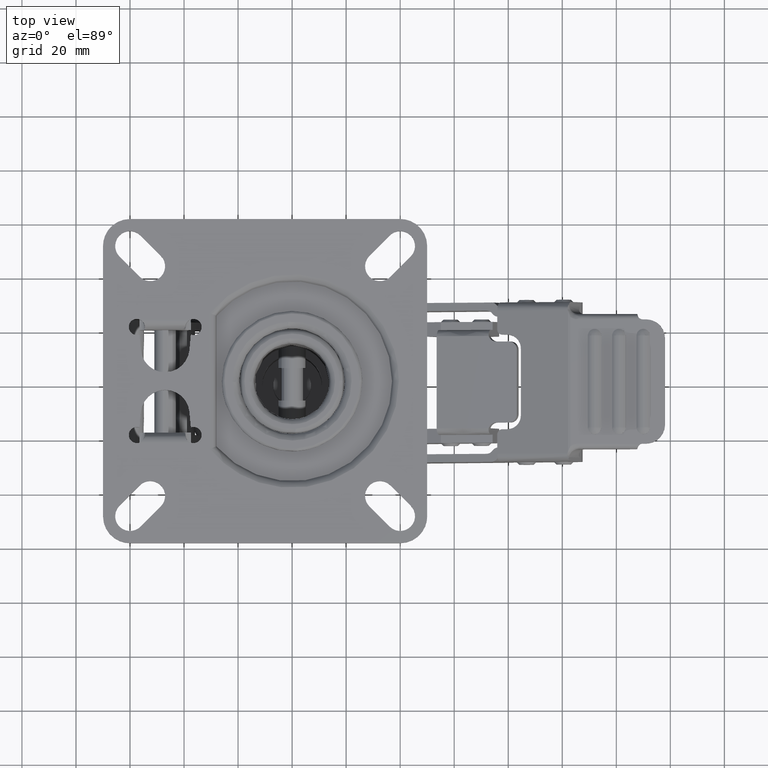
[diagram: clean part render]
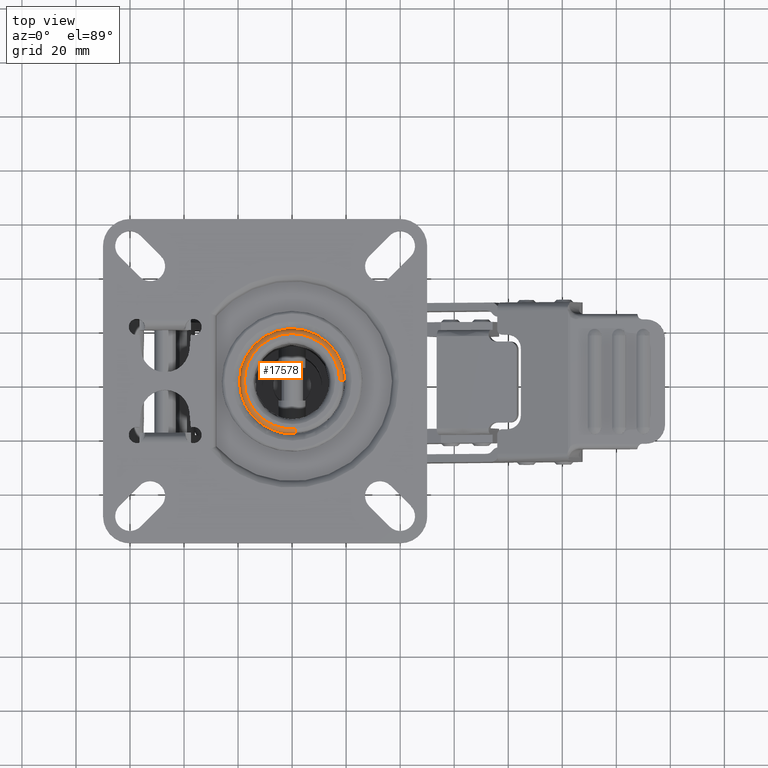
[diagram: same view with one face highlighted and labeled with its STEP entity id]
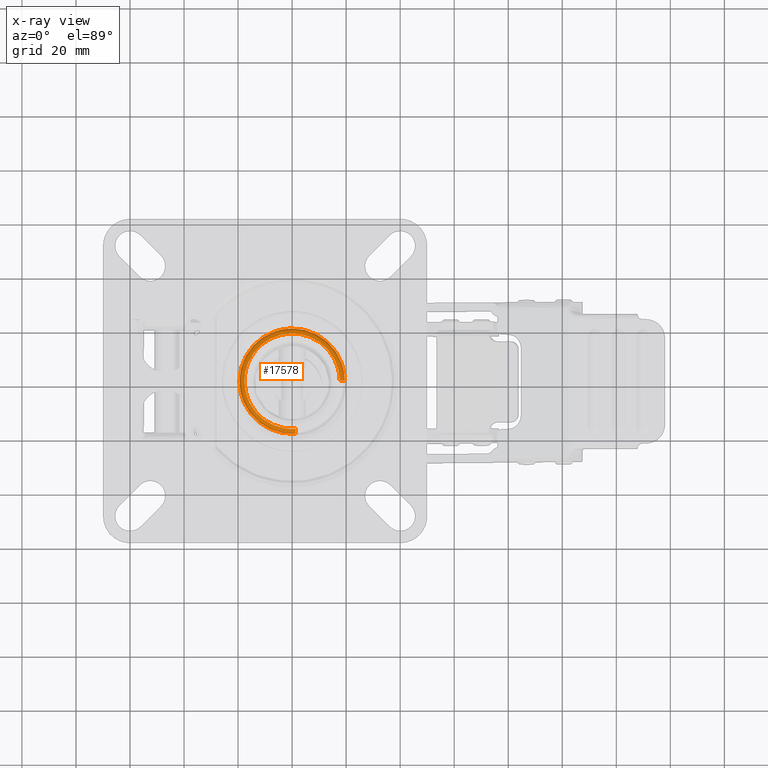
[diagram: x-ray of the same camera — body ghosted, the highlighted face saturated]
A machine part, top view. The second image highlights one B-rep face of the part: STEP entity #17578.
The next image is the same camera in x-ray: the body ghosted, the highlighted face saturated — about 0% of this face is hidden behind the body in this view.
In plain terms, the highlighted face is a freeform B-spline surface patch.
Its self-contained STEP definition (entity closure, byte-faithful):
#17415=CARTESIAN_POINT('',(1.221820157136849,-17.478703313306326,-4.004478202219710));
#17416=CARTESIAN_POINT('',(0.721587660383555,-17.513671247530755,-4.004478202219708));
#17417=CARTESIAN_POINT('',(0.220174057564924,-17.519972528384478,-4.004478202219707));
#17418=CARTESIAN_POINT('',(-17.299798470819525,-17.740146585949393,-4.004478202219708));
#17419=CARTESIAN_POINT('',(-17.519972528384447,-0.220174057564948,-4.004478202219707));
#17420=CARTESIAN_POINT('',(-17.740146585949379,17.299798470819510,-4.004478202219708));
#17421=CARTESIAN_POINT('',(-0.220174057564926,17.519972528384425,-4.004478202219707));
#17422=CARTESIAN_POINT('',(17.299798470819525,17.740146585949361,-4.004478202219708));
#17423=CARTESIAN_POINT('',(17.519972528384447,0.220174057564903,-4.004478202219707));
#17424=CARTESIAN_POINT('',(1.369800122671880,-19.595625266829465,-3.856555816048767));
#17425=CARTESIAN_POINT('',(0.808982287563619,-19.634828320004210,-3.856555816048767));
#17426=CARTESIAN_POINT('',(0.246840297485629,-19.641892776451435,-3.856555816048768));
#17427=CARTESIAN_POINT('',(-19.395052478965763,-19.888733073937043,-3.856555816048766));
#17428=CARTESIAN_POINT('',(-19.641892776451403,-0.246840297485654,-3.856555816048768));
#17429=CARTESIAN_POINT('',(-19.888733073937022,19.395052478965738,-3.856555816048766));
#17430=CARTESIAN_POINT('',(-0.246840297485631,19.641892776451385,-3.856555816048768));
#17431=CARTESIAN_POINT('',(19.395052478965763,19.888733073936997,-3.856555816048766));
#17432=CARTESIAN_POINT('',(19.641892776451403,0.246840297485609,-3.856555816048768));
#17433=CARTESIAN_POINT('',(1.359485054789001,-19.448063442670392,-5.978643648176345));
#17434=CARTESIAN_POINT('',(0.802890371616066,-19.486971283318862,-5.978643648176346));
#17435=CARTESIAN_POINT('',(0.244981504817522,-19.493982541969828,-5.978643648176345));
#17436=CARTESIAN_POINT('',(-19.249001037152276,-19.738964046787345,-5.978643648176346));
#17437=CARTESIAN_POINT('',(-19.493982541969803,-0.244981504817547,-5.978643648176345));
#17438=CARTESIAN_POINT('',(-19.738964046787316,19.249001037152247,-5.978643648176346));
#17439=CARTESIAN_POINT('',(-0.244981504817525,19.493982541969782,-5.978643648176345));
#17440=CARTESIAN_POINT('',(19.249001037152276,19.738964046787299,-5.978643648176346));
#17441=CARTESIAN_POINT('',(19.493982541969803,0.244981504817502,-5.978643648176345));
#17449=(BOUNDED_SURFACE()B_SPLINE_SURFACE(2,2,((#17415,#17424,#17433),(#17416,#17425,#17434),(#17417,#17426,#17435),(#17418,#17427,#17436),(#17419,#17428,#17437),(#17420,#17429,#17438),(#17421,#17430,#17439),(#17422,#17431,#17440),(#17423,#17432,#17441)),.UNSPECIFIED.,.F.,.F.,.U.)B_SPLINE_SURFACE_WITH_KNOTS((3,2,2,2,3),(3,3),(0.0,1.292048295172410,33.593286479343909,65.894524663515412,98.195762847686922),(0.0,3.371392224879566),.UNSPECIFIED.)GEOMETRIC_REPRESENTATION_ITEM()RATIONAL_B_SPLINE_SURFACE(((0.895729827264092,0.587800177767222,0.895729736419678),(0.905606585907197,0.594281552294978,0.905606494061087),(0.916342192237678,0.601326524023529,0.916342099302769),(0.647951778018609,0.425202062844373,0.647951712303704),(0.916342192237678,0.601326524023529,0.916342099302769),(0.647951778018609,0.425202062844373,0.647951712303704),(0.916342192237678,0.601326524023529,0.916342099302769),(0.647951778018609,0.425202062844373,0.647951712303704),(0.916342192237678,0.601326524023529,0.916342099302769)))REPRESENTATION_ITEM('')SURFACE());
#17450=CARTESIAN_POINT('',(1.359798405728119,-19.452530639887961,-5.849999999059281));
#17451=VERTEX_POINT('',#17450);
#17452=CARTESIAN_POINT('',(-19.500000000000000,-2.340590E-014,-5.850000000000001));
#17453=VERTEX_POINT('',#17452);
#17454=CARTESIAN_POINT('',(1.359798405728119,-19.452530639887961,-5.849999999059281));
#17455=CARTESIAN_POINT('',(0.030070756109644,-19.545660644360140,-5.849999999164059));
#17456=CARTESIAN_POINT('',(-2.313643680117045,-19.468594464149788,-5.849999999340648));
#17457=CARTESIAN_POINT('',(-5.744372450444065,-18.729497785445471,-5.849999999578047));
#17458=CARTESIAN_POINT('',(-8.853101994999333,-17.492237492572070,-5.849999999774128));
#17459=CARTESIAN_POINT('',(-11.690966989883110,-15.719834574698490,-5.849999999931455));
#17460=CARTESIAN_POINT('',(-14.130409487959209,-13.559166913625130,-5.850000000045360));
#17461=CARTESIAN_POINT('',(-16.300953826205941,-10.906369483366580,-5.850000000122076));
#17462=CARTESIAN_POINT('',(-18.027110910055761,-7.745757822593222,-5.850000000147815));
#17463=CARTESIAN_POINT('',(-19.217346947448089,-3.998836768048067,-5.850000000112882));
#17464=CARTESIAN_POINT('',(-19.500251698728039,-1.416298139897424,-5.850000000047586));
#17465=CARTESIAN_POINT('',(-19.500000000000000,-2.340590E-014,-5.850000000000001));
#17466=B_SPLINE_CURVE_WITH_KNOTS('',3,(#17454,#17455,#17456,#17457,#17458,#17459,#17460,#17461,#17462,#17463,#17464,#17465),.UNSPECIFIED.,.F.,.U.,(4,1,1,1,1,1,1,1,1,4),(0.000000061989418,3.998951616519197,6.998167771407491,10.497278226644360,13.996408655396641,16.995520130249609,20.244700946267621,24.243673078106561,27.742774400032381,31.991650216113840),.UNSPECIFIED.);
#17467=EDGE_CURVE('',#17451,#17453,#17466,.T.);
#17468=ORIENTED_EDGE('',*,*,#17467,.F.);
#17469=CARTESIAN_POINT('',(1.230791894841725,-17.607034179146790,-4.000000000000002));
#17470=VERTEX_POINT('',#17469);
#17471=CARTESIAN_POINT('',(1.230791894841725,-17.607034179146790,-4.000000000000002));
#17472=CARTESIAN_POINT('',(1.252969564554681,-17.924295770703420,-3.999193525393565));
#17473=CARTESIAN_POINT('',(1.288792126526880,-18.436753714746619,-4.136040821585681));
#17474=CARTESIAN_POINT('',(1.327179800364579,-18.985906743671780,-4.576790946968078));
#17475=CARTESIAN_POINT('',(1.352670210853371,-19.350558589655389,-5.123810795910117));
#17476=CARTESIAN_POINT('',(1.359828217642807,-19.452957112820130,-5.577483242606090));
#17477=CARTESIAN_POINT('',(1.359798405728119,-19.452530639887961,-5.849999999059281));
#17478=B_SPLINE_CURVE_WITH_KNOTS('',3,(#17471,#17472,#17473,#17474,#17475,#17476,#17477),.UNSPECIFIED.,.F.,.U.,(4,1,1,1,4),(0.000000518040428,0.953564804814748,1.543800548152913,2.088715226250358,2.906046114575070),.UNSPECIFIED.);
#17479=EDGE_CURVE('',#17470,#17451,#17478,.T.);
#17480=ORIENTED_EDGE('',*,*,#17479,.F.);
#17481=CARTESIAN_POINT('',(-17.649999999999999,-2.340590E-014,-4.0));
#17482=VERTEX_POINT('',#17481);
#17483=CARTESIAN_POINT('',(-17.649999999999999,-2.340590E-014,-4.0));
#17484=CARTESIAN_POINT('',(-17.650234575231359,-1.281932283743445,-4.000000000000004));
#17485=CARTESIAN_POINT('',(-17.369445043305891,-3.845683636368075,-3.999999999999991));
#17486=CARTESIAN_POINT('',(-16.176335901698739,-7.365925067340593,-4.000000000000021));
#17487=CARTESIAN_POINT('',(-14.485538541325299,-10.238617355356780,-3.999999999999962));
#17488=CARTESIAN_POINT('',(-12.770219994972280,-12.254671104390059,-4.000000000000052));
#17489=CARTESIAN_POINT('',(-10.982179451335520,-13.879732605536169,-3.999999999999975));
#17490=CARTESIAN_POINT('',(-8.811866501077711,-15.395171896309220,-4.000000000000015));
#17491=CARTESIAN_POINT('',(-5.791119795355010,-16.804530580477660,-3.999999999999995));
#17492=CARTESIAN_POINT('',(-2.320910145792302,-17.622098458223689,-4.0));
#17493=CARTESIAN_POINT('',(0.102459754018269,-17.686022728433130,-4.000000000000020));
#17494=CARTESIAN_POINT('',(1.230791894841725,-17.607034179146790,-4.000000000000002));
#17495=B_SPLINE_CURVE_WITH_KNOTS('',3,(#17483,#17484,#17485,#17486,#17487,#17488,#17489,#17490,#17491,#17492,#17493,#17494),.UNSPECIFIED.,.F.,.U.,(4,1,1,1,1,1,1,1,1,4),(0.000000112688454,3.845767047260619,7.691586705301610,11.084977733655940,13.799666370923941,15.609310500587011,18.324026910712981,21.717408737165950,25.563250717645740,28.956544951532099),.UNSPECIFIED.);
#17496=EDGE_CURVE('',#17482,#17470,#17495,.T.);
#17497=ORIENTED_EDGE('',*,*,#17496,.F.);
#17498=CARTESIAN_POINT('',(-0.110756683039301,17.649652488283198,-4.0));
#17499=VERTEX_POINT('',#17498);
#17500=CARTESIAN_POINT('',(-0.110756683039301,17.649652488283198,-4.0));
#17501=CARTESIAN_POINT('',(-1.405143796496065,17.641781723047728,-4.000000000000006));
#17502=CARTESIAN_POINT('',(-3.560813604949802,17.389552247161632,-4.0));
#17503=CARTESIAN_POINT('',(-6.316491882237025,16.538210727237740,-4.0));
#17504=CARTESIAN_POINT('',(-8.734978707820774,15.417116429708170,-3.999999999999999));
#17505=CARTESIAN_POINT('',(-11.380908385803849,13.657857181801370,-4.000000000000012));
#17506=CARTESIAN_POINT('',(-13.663136943882281,11.333012396421100,-3.999999999999987));
#17507=CARTESIAN_POINT('',(-15.273556237545790,8.941766746229552,-3.999999999999996));
#17508=CARTESIAN_POINT('',(-16.532428676452390,6.429735591547959,-4.000000000000013));
#17509=CARTESIAN_POINT('',(-17.431949611808420,3.451749258772848,-3.999999999999966));
#17510=CARTESIAN_POINT('',(-17.650069060902730,1.078655698380525,-4.000000000000029));
#17511=CARTESIAN_POINT('',(-17.649999999999999,-2.340590E-014,-4.0));
#17512=B_SPLINE_CURVE_WITH_KNOTS('',3,(#17500,#17501,#17502,#17503,#17504,#17505,#17506,#17507,#17508,#17509,#17510,#17511),.UNSPECIFIED.,.F.,.U.,(4,1,1,1,1,1,1,1,1,4),(0.000000123380925,3.883184498638507,6.472020071118315,8.629372427881229,11.865391633643290,15.964277407738351,18.337385816260351,20.494740241832119,24.377962654429350,27.613969639519340),.UNSPECIFIED.);
#17513=EDGE_CURVE('',#17499,#17482,#17512,.T.);
#17514=ORIENTED_EDGE('',*,*,#17513,.F.);
#17515=CARTESIAN_POINT('',(17.648606438643249,0.221790604400036,-4.0));
#17516=VERTEX_POINT('',#17515);
#17517=CARTESIAN_POINT('',(17.648606438643249,0.221790604400036,-4.0));
#17518=CARTESIAN_POINT('',(17.630917410139389,1.659919815027475,-4.000000000000001));
#17519=CARTESIAN_POINT('',(17.299242308787139,4.100700645179892,-3.999999999999982));
#17520=CARTESIAN_POINT('',(16.062810205540789,7.567741868263251,-4.000000000000016));
#17521=CARTESIAN_POINT('',(14.559089773908450,10.122272713526669,-4.000000000000001));
#17522=CARTESIAN_POINT('',(12.709000493426309,12.331780012012411,-3.999999999999994));
#17523=CARTESIAN_POINT('',(10.618668914297650,14.214698067029850,-4.000000000000003));
#17524=CARTESIAN_POINT('',(7.795619580405486,15.968932970171370,-4.000000000000002));
#17525=CARTESIAN_POINT('',(4.133869600866225,17.323379142193179,-3.999999999999993));
#17526=CARTESIAN_POINT('',(1.399369518999962,17.659553793210950,-4.000000000000020));
#17527=CARTESIAN_POINT('',(-0.110756683039301,17.649652488283198,-4.0));
#17528=B_SPLINE_CURVE_WITH_KNOTS('',3,(#17517,#17518,#17519,#17520,#17521,#17522,#17523,#17524,#17525,#17526,#17527),.UNSPECIFIED.,.F.,.U.,(4,1,1,1,1,1,1,1,4),(0.000000123379479,4.314632558104261,7.334888723400351,11.002379770519481,13.159716068015380,15.964114598167050,19.415858183991190,23.083333305170061,27.613688020848649),.UNSPECIFIED.);
#17529=EDGE_CURVE('',#17516,#17499,#17528,.T.);
#17530=ORIENTED_EDGE('',*,*,#17529,.F.);
#17531=CARTESIAN_POINT('',(19.498460361974040,0.245037777754962,-5.849999999042731));
#17532=VERTEX_POINT('',#17531);
#17533=CARTESIAN_POINT('',(17.648606438643249,0.221790604400036,-4.0));
#17534=CARTESIAN_POINT('',(17.890798697396569,0.224834242249634,-3.999738398524294));
#17535=CARTESIAN_POINT('',(18.268932831545062,0.229586265989527,-4.075405008533131));
#17536=CARTESIAN_POINT('',(18.722437142129689,0.235285469146253,-4.325130941657213));
#17537=CARTESIAN_POINT('',(19.087593627123809,0.239874402358768,-4.647812825364075));
#17538=CARTESIAN_POINT('',(19.407987188536570,0.243900798484174,-5.153935384202274));
#17539=CARTESIAN_POINT('',(19.498729505568090,0.245041160087223,-5.607789557331997));
#17540=CARTESIAN_POINT('',(19.498460361974040,0.245037777754962,-5.849999999042731));
#17541=B_SPLINE_CURVE_WITH_KNOTS('',3,(#17533,#17534,#17535,#17536,#17537,#17538,#17539,#17540),.UNSPECIFIED.,.F.,.U.,(4,1,1,1,1,4),(0.000000517999911,0.726511915975477,1.135178767615516,1.543800553206529,2.179534712246564,2.906046123927455),.UNSPECIFIED.);
#17542=EDGE_CURVE('',#17516,#17532,#17541,.T.);
#17543=ORIENTED_EDGE('',*,*,#17542,.T.);
#17544=CARTESIAN_POINT('',(-0.122384449958593,19.499615946125900,-5.850000000000001));
#17545=VERTEX_POINT('',#17544);
#17546=CARTESIAN_POINT('',(-0.122384449958593,19.499615946125900,-5.850000000000001));
#17547=CARTESIAN_POINT('',(0.910397335936880,19.506161676361160,-5.849999999974653));
#17548=CARTESIAN_POINT('',(3.056502349841879,19.348771941080528,-5.849999999917769));
#17549=CARTESIAN_POINT('',(6.311003832973704,18.558728470230051,-5.849999999818008));
#17550=CARTESIAN_POINT('',(9.522946004185712,17.142065338311511,-5.849999999703856));
#17551=CARTESIAN_POINT('',(12.158982537603420,15.343364828970939,-5.849999999594594));
#17552=CARTESIAN_POINT('',(14.310707445355410,13.332560653943659,-5.849999999492104));
#17553=CARTESIAN_POINT('',(16.275984883856790,10.926347905361149,-5.849999999384544));
#17554=CARTESIAN_POINT('',(18.062128661824101,7.715306324674527,-5.849999999261438));
#17555=CARTESIAN_POINT('',(19.217871714072519,3.975796200100306,-5.849999999141274));
#17556=CARTESIAN_POINT('',(19.483576322125060,1.436647474354008,-5.849999999072320));
#17557=CARTESIAN_POINT('',(19.498460361974040,0.245037777754962,-5.849999999042731));
#17558=B_SPLINE_CURVE_WITH_KNOTS('',3,(#17546,#17547,#17548,#17549,#17550,#17551,#17552,#17553,#17554,#17555,#17556,#17557),.UNSPECIFIED.,.F.,.U.,(4,1,1,1,1,1,1,1,1,4),(0.000000100458593,3.098423689062582,6.435292899486829,10.010479623989180,13.585684104315209,15.968999514579220,18.829144234854780,22.881044491174229,26.932944747493679,30.508059292897510),.UNSPECIFIED.);
#17559=EDGE_CURVE('',#17545,#17532,#17558,.T.);
#17560=ORIENTED_EDGE('',*,*,#17559,.F.);
#17561=CARTESIAN_POINT('',(-19.500000000000000,-2.340590E-014,-5.850000000000001));
#17562=CARTESIAN_POINT('',(-19.500215798928590,1.350630904013732,-5.850000000033169));
#17563=CARTESIAN_POINT('',(-19.243062430420061,3.813432619094470,-5.850000000087241));
#17564=CARTESIAN_POINT('',(-18.228543231527059,7.172103336734559,-5.850000000144621));
#17565=CARTESIAN_POINT('',(-16.676940965350369,10.316987810024060,-5.850000000183509));
#17566=CARTESIAN_POINT('',(-14.573305604525860,13.132531758366881,-5.850000000200632));
#17567=CARTESIAN_POINT('',(-12.216976627147540,15.282229703393091,-5.850000000195210));
#17568=CARTESIAN_POINT('',(-9.917053005196252,16.852538948973230,-5.850000000176940));
#17569=CARTESIAN_POINT('',(-7.219227625723802,18.225788354150311,-5.850000000144015));
#17570=CARTESIAN_POINT('',(-3.854884898343880,19.242466472348259,-5.850000000085879));
#17571=CARTESIAN_POINT('',(-1.314072675023548,19.492244706734130,-5.850000000029247));
#17572=CARTESIAN_POINT('',(-0.122384449958593,19.499615946125900,-5.850000000000001));
#17573=B_SPLINE_CURVE_WITH_KNOTS('',3,(#17561,#17562,#17563,#17564,#17565,#17566,#17567,#17568,#17569,#17570,#17571,#17572),.UNSPECIFIED.,.F.,.U.,(4,1,1,1,1,1,1,1,1,4),(0.000000100466547,4.051864447867988,7.388734288777815,10.487243619294860,14.539189016526841,17.875961094360520,20.021083940441020,22.881249785134099,26.933186396923940,30.508333018174842),.UNSPECIFIED.);
#17574=EDGE_CURVE('',#17453,#17545,#17573,.T.);
#17575=ORIENTED_EDGE('',*,*,#17574,.F.);
#17576=EDGE_LOOP('',(#17468,#17480,#17497,#17514,#17530,#17543,#17560,#17575));
#17577=FACE_OUTER_BOUND('',#17576,.T.);
#17578=ADVANCED_FACE('',(#17577),#17449,.T.);